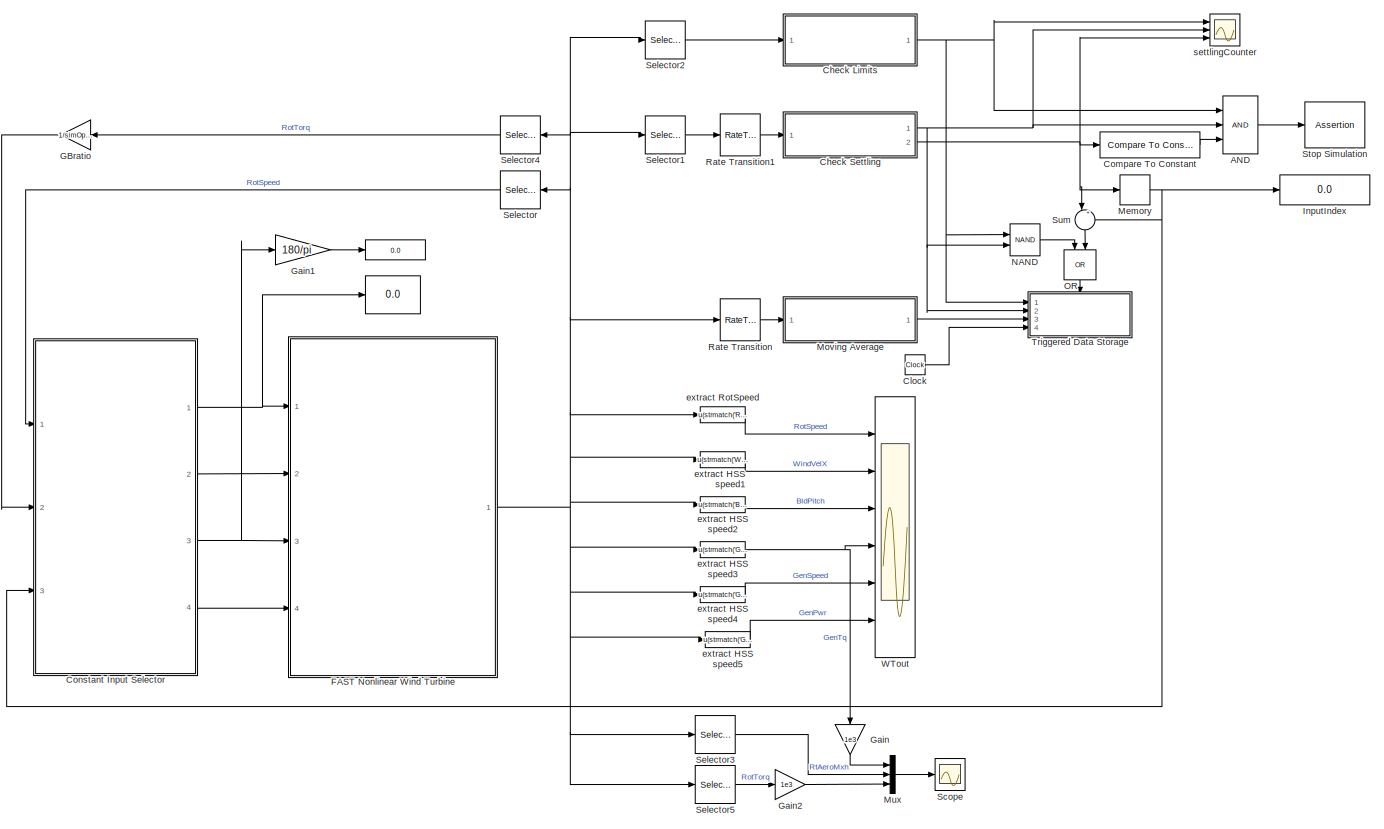
[diagram: root canvas - part 1/2, most of the canvas]
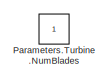
[diagram: root canvas - part 2/2, middle left region]
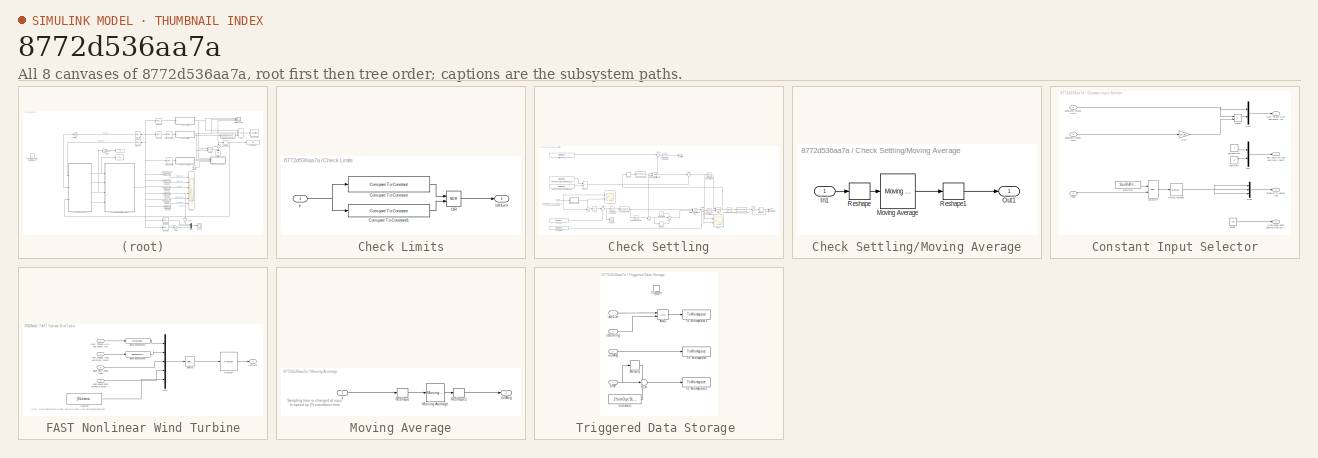
[diagram: thumbnail index - all 8 canvases of the model, root first then tree order]
MODEL slx_8772d536aa7a
KIND model
CONFIG AbsTol = auto
CONFIG EnableMultiTasking = off
CONFIG FixedStep = auto
CONFIG MaxStep = auto
CONFIG MinStep = auto
CONFIG RelTol = 1e-3
CONFIG SampleTimeConstraint = Unconstrained
CONFIG SolverName = ode45
CONFIG StartTime = 0.0
CONFIG StopTime = TMax
BLOCK [Display]  
  Decimation = 1
  Ports = [1]
BLOCK [Display]   
  Decimation = 1
  Ports = [1]
BLOCK [Logic] AND
  AllPortsSameDT = off
  IconShape = distinctive
  Inputs = 3
  OutDataTypeStr = boolean
  Ports = [3, 1]
BLOCK [SubSystem] Check Limits
  Ports = [1, 1]
  RequestExecContextInheritance = off
BLOCK [Reference] Check Limits/Compare To Constant  REF=simulink/Logic and Bit
Operations/Compare
To Constant
  Ports = [1, 1]
  SourceBlock = simulink/Logic and Bit\nOperations/Compare\nTo Constant
  SourceProductBaseCode = SL
  SourceType = Compare To Constant
BLOCK [Reference] Check Limits/Compare To Constant1  REF=simulink/Logic and Bit
Operations/Compare
To Constant
  Ports = [1, 1]
  SourceBlock = simulink/Logic and Bit\nOperations/Compare\nTo Constant
  SourceProductBaseCode = SL
  SourceType = Compare To Constant
BLOCK [Logic] Check Limits/OR
  AllPortsSameDT = off
  IconShape = distinctive
  Operator = NOR
  OutDataTypeStr = boolean
  Ports = [2, 1]
BLOCK [Outport] Check Limits/isInLim
BLOCK [Inport] Check Limits/y
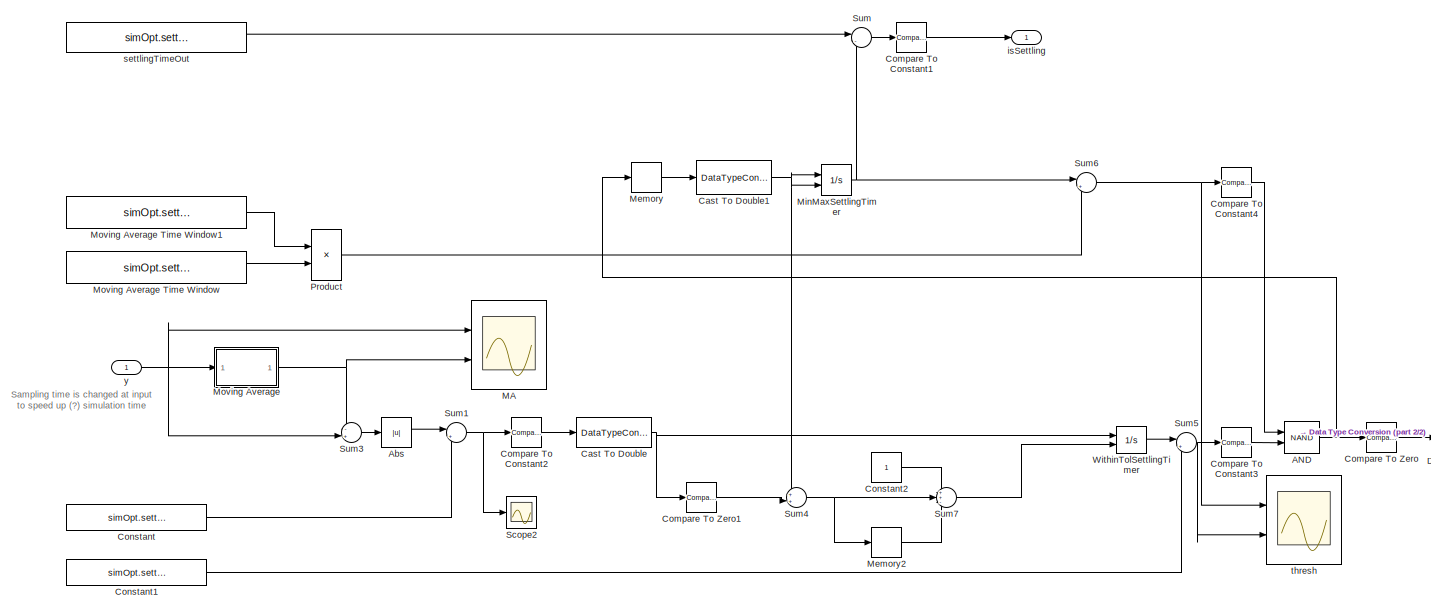
[diagram: Check Settling - part 1/2, most of the canvas]
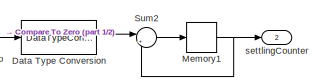
[diagram: Check Settling - part 2/2, bottom right region]
BLOCK [SubSystem] Check Settling
  Ports = [1, 2]
  RequestExecContextInheritance = off
BLOCK [Logic] Check Settling/AND
  AllPortsSameDT = off
  IconShape = distinctive
  Operator = NAND
  OutDataTypeStr = boolean
  Ports = [2, 1]
BLOCK [Abs] Check Settling/Abs
  SaturateOnIntegerOverflow = off
BLOCK [DataTypeConversion] Check Settling/Cast To Double
  OutDataTypeStr = double
  RndMeth = Floor
  SaturateOnIntegerOverflow = off
BLOCK [DataTypeConversion] Check Settling/Cast To Double1
  OutDataTypeStr = double
  RndMeth = Floor
  SaturateOnIntegerOverflow = off
BLOCK [Reference] Check Settling/Compare To Constant1  REF=simulink/Logic and Bit
Operations/Compare
To Constant
  Ports = [1, 1]
  SourceBlock = simulink/Logic and Bit\nOperations/Compare\nTo Constant
  SourceProductBaseCode = SL
  SourceType = Compare To Constant
BLOCK [Reference] Check Settling/Compare To Constant2  REF=simulink/Logic and Bit
Operations/Compare
To Constant
  Ports = [1, 1]
  SourceBlock = simulink/Logic and Bit\nOperations/Compare\nTo Constant
  SourceProductBaseCode = SL
  SourceType = Compare To Constant
BLOCK [Reference] Check Settling/Compare To Constant3  REF=simulink/Logic and Bit
Operations/Compare
To Constant
  Ports = [1, 1]
  SourceBlock = simulink/Logic and Bit\nOperations/Compare\nTo Constant
  SourceProductBaseCode = SL
  SourceType = Compare To Constant
BLOCK [Reference] Check Settling/Compare To Constant4  REF=simulink/Logic and Bit
Operations/Compare
To Constant
  Ports = [1, 1]
  SourceBlock = simulink/Logic and Bit\nOperations/Compare\nTo Constant
  SourceProductBaseCode = SL
  SourceType = Compare To Constant
BLOCK [Reference] Check Settling/Compare To Zero  REF=simulink/Logic and Bit
Operations/Compare
To Zero
  Ports = [1, 1]
  SourceBlock = simulink/Logic and Bit\nOperations/Compare\nTo Zero
  SourceProductBaseCode = SL
  SourceType = Compare To Zero
BLOCK [Reference] Check Settling/Compare To Zero1  REF=simulink/Logic and Bit
Operations/Compare
To Zero
  Ports = [1, 1]
  SourceBlock = simulink/Logic and Bit\nOperations/Compare\nTo Zero
  SourceProductBaseCode = SL
  SourceType = Compare To Zero
BLOCK [Constant] Check Settling/Constant
  Value = simOpt.settlingAbsThresh
BLOCK [Constant] Check Settling/Constant1
  Value = simOpt.settlingMinTime
BLOCK [Constant] Check Settling/Constant2
BLOCK [DataTypeConversion] Check Settling/Data Type Conversion
  RndMeth = Floor
  SaturateOnIntegerOverflow = off
BLOCK [Scope] Check Settling/MA
  Floating = off
  NumInputPorts = 2
  Ports = [2]
  ScopeSpecificationString = Simulink.scopes.TimeScopeBlockCfg('CurrentConfiguration', extmgr.ConfigurationSet(extmgr.Configuration('Core','General UI',true),extmgr.Configuration('Core','Source UI',true),extmgr.Configuration('Sources','WiredSimulink',true,'DataLoggingVariableName','ScopeData2','DataLoggingLimitDataPoints',true,'DataLoggingMaxPoints','50000'),extmgr.Configuration('Visuals','Time Domain',true,'SerializedDisplay...<+1627ch>
BLOCK [Memory] Check Settling/Memory
  InitialCondition = true
BLOCK [Memory] Check Settling/Memory1
  InheritSampleTime = on
  InitialCondition = 1
BLOCK [Memory] Check Settling/Memory2
  InheritSampleTime = on
  InitialCondition = 1
BLOCK [Integrator] Check Settling/MinMaxSettlingTimer
  ExternalReset = falling
  LimitOutput = on
  Ports = [2, 1]
  UpperSaturationLimit = max(simOpt.settlingMovAvgWindowLength*simOpt.settlingSmplTime,simOpt.settlingMaxTime)*1.01
BLOCK [SubSystem] Check Settling/Moving Average
  Ports = [1, 1]
  RequestExecContextInheritance = off
BLOCK [Constant] Check Settling/Moving Average Time Window
  Value = simOpt.settlingMovAvgWindowLength
BLOCK [Constant] Check Settling/Moving Average Time Window1
  Value = simOpt.settlingSmplTime
BLOCK [Inport] Check Settling/Moving Average/In1
BLOCK [Reference] Check Settling/Moving Average/Moving Average  REF=dspstat3/Moving
Average
  Ports = [1, 1]
  SourceBlock = dspstat3/Moving\nAverage
  SourceProductBaseCode = DS
  SourceType = dsp.simulink.MovingAverage
BLOCK [Outport] Check Settling/Moving Average/Out1
BLOCK [Reshape] Check Settling/Moving Average/Reshape
  OutputDimensionality = Row vector (2-D)
  Ports = [1, 1]
BLOCK [Reshape] Check Settling/Moving Average/Reshape1
  Ports = [1, 1]
BLOCK [Product] Check Settling/Product
  Ports = [2, 1]
BLOCK [Scope] Check Settling/Scope2
  Floating = off
  NumInputPorts = 1
  Ports = [1]
  ScopeSpecificationString = Simulink.scopes.TimeScopeBlockCfg('CurrentConfiguration', extmgr.ConfigurationSet(extmgr.Configuration('Core','General UI',true),extmgr.Configuration('Core','Source UI',true),extmgr.Configuration('Sources','WiredSimulink',true,'DataLoggingVariableName','ScopeData1','DataLoggingLimitDataPoints',true),extmgr.Configuration('Visuals','Time Domain',true,'SerializedDisplays',{struct('MinYLimReal','-0.00...<+1469ch>
BLOCK [Sum] Check Settling/Sum
  Inputs = |-+
  Ports = [2, 1]
BLOCK [Sum] Check Settling/Sum1
  Inputs = |+-
  Ports = [2, 1]
BLOCK [Sum] Check Settling/Sum2
  Inputs = |++
  Ports = [2, 1]
BLOCK [Sum] Check Settling/Sum3
  Inputs = -+|
  Ports = [2, 1]
BLOCK [Sum] Check Settling/Sum4
  Inputs = ++|
  Ports = [2, 1]
BLOCK [Sum] Check Settling/Sum5
  Inputs = |+-
  Ports = [2, 1]
BLOCK [Sum] Check Settling/Sum6
  Inputs = |+-
  Ports = [2, 1]
BLOCK [Sum] Check Settling/Sum7
  Inputs = ++-
  Ports = [3, 1]
BLOCK [Integrator] Check Settling/WithinTolSettlingTimer
  ExternalReset = falling
  LimitOutput = on
  Ports = [2, 1]
  UpperSaturationLimit = simOpt.settlingMinTime
BLOCK [Outport] Check Settling/isSettling
BLOCK [Outport] Check Settling/settlingCounter
  Port = 2
BLOCK [Constant] Check Settling/settlingTimeOut
  Value = simOpt.settlingMaxTime
BLOCK [Scope] Check Settling/thresh
  Floating = off
  NumInputPorts = 2
  Ports = [2]
  ScopeSpecificationString = Simulink.scopes.TimeScopeBlockCfg('CurrentConfiguration', extmgr.ConfigurationSet(extmgr.Configuration('Core','General UI',true),extmgr.Configuration('Core','Source UI',true),extmgr.Configuration('Sources','WiredSimulink',true,'DataLoggingVariableName','ScopeData1','DataLoggingLimitDataPoints',true,'DataLoggingMaxPoints','50000'),extmgr.Configuration('Visuals','Time Domain',true,'SerializedDisplay...<+2159ch>
BLOCK [Inport] Check Settling/y
  SampleTime = simOpt.settlingSmplTime
BLOCK [Clock] Clock
BLOCK [Reference] Compare To Constant  REF=simulink/Logic and Bit
Operations/Compare
To Constant
  Ports = [1, 1]
  SourceBlock = simulink/Logic and Bit\nOperations/Compare\nTo Constant
  SourceProductBaseCode = SL
  SourceType = Compare To Constant
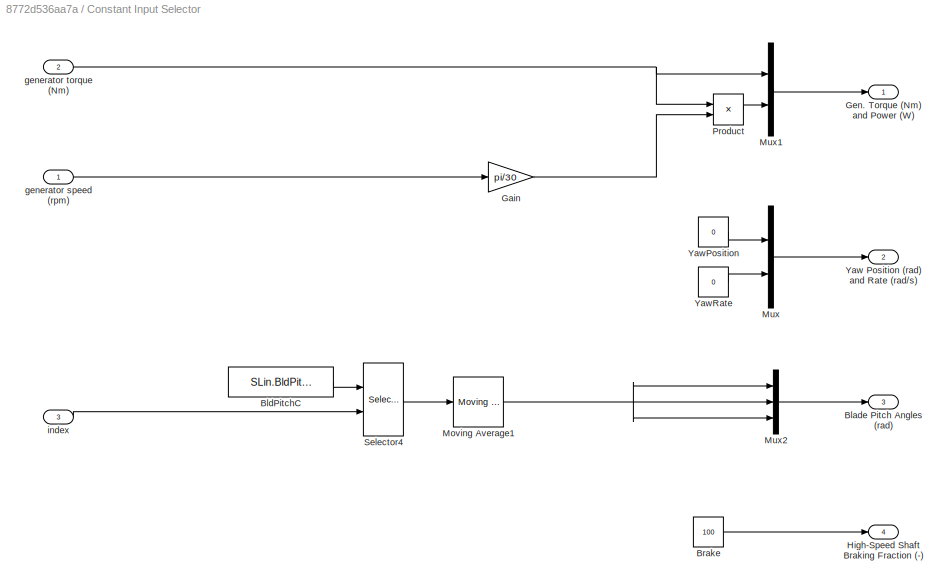
BLOCK [SubSystem] Constant Input Selector
  Ports = [3, 4]
  RequestExecContextInheritance = off
BLOCK [Outport] Constant Input Selector/Blade Pitch Angles (rad)
  Port = 3
BLOCK [Constant] Constant Input Selector/BldPitchC
  Value = SLin.BldPitchC(:)
BLOCK [Constant] Constant Input Selector/Brake
  Value = 100
BLOCK [Gain] Constant Input Selector/Gain
  Gain = pi/30
BLOCK [Outport] Constant Input Selector/Gen. Torque (Nm) and Power (W)
BLOCK [Outport] Constant Input Selector/High-Speed Shaft Braking Fraction (-)
  Port = 4
BLOCK [Reference] Constant Input Selector/Moving Average1  REF=dspstat3/Moving
Average
  Ports = [1, 1]
  SourceBlock = dspstat3/Moving\nAverage
  SourceProductBaseCode = DS
  SourceType = dsp.simulink.MovingAverage
BLOCK [Mux] Constant Input Selector/Mux
  DisplayOption = bar
  Inputs = 2
  Ports = [2, 1]
BLOCK [Mux] Constant Input Selector/Mux1
  DisplayOption = bar
  Inputs = 2
  Ports = [2, 1]
BLOCK [Mux] Constant Input Selector/Mux2
  DisplayOption = bar
  Inputs = 3
  Ports = [3, 1]
BLOCK [Product] Constant Input Selector/Product
  Ports = [2, 1]
BLOCK [Selector] Constant Input Selector/Selector4
  IndexOptions = Index vector (port)
  Indices = simOpt.i_outRotSpeed
  InputPortWidth = SLin.n_step
  OutputSizes = 1
  Ports = [2, 1]
BLOCK [Outport] Constant Input Selector/Yaw Position (rad) and Rate (rad//s)
  Port = 2
BLOCK [Constant] Constant Input Selector/YawPosition
  Value = 0
BLOCK [Constant] Constant Input Selector/YawRate
  Value = 0
BLOCK [Inport] Constant Input Selector/generator speed (rpm)
BLOCK [Inport] Constant Input Selector/generator torque (Nm)
  Port = 2
BLOCK [Inport] Constant Input Selector/index
  Port = 3
BLOCK [SubSystem] FAST Nonlinear Wind Turbine
  Ports = [4, 1]
  RequestExecContextInheritance = off
BLOCK [Inport] FAST Nonlinear Wind Turbine/Blade Pitch Angles (rad)
  Port = 3
BLOCK [Constant] FAST Nonlinear Wind Turbine/Constant
  Value = [SLin.extra;0]
BLOCK [Inport] FAST Nonlinear Wind Turbine/Gen. Torque (Nm) and Power (W)
BLOCK [Inport] FAST Nonlinear Wind Turbine/High-Speed Shaft Braking Fraction (-)
  Port = 4
BLOCK [Mux] FAST Nonlinear Wind Turbine/Mux1
  DisplayOption = bar
  Inputs = 5
  Ports = [5, 1]
BLOCK [Outport] FAST Nonlinear Wind Turbine/OutData
  VectorParamsAs1DForOutWhenUnconnected = off
BLOCK [S-Function] FAST Nonlinear Wind Turbine/S-Function
  EnableBusSupport = off
  FunctionName = FAST_SFunc
  Parameters = simOpt.FSTnewInputFile, simOpt.SLmaxTime, 0
  Ports = [1, 1]
  SFcnIsStateOwnerBlock = off
  SFunctionDeploymentMode = off
BLOCK [Selector] FAST Nonlinear Wind Turbine/Selector
  IndexOptions = Index vector (dialog)
  Indices = 1:(8+numel(SLin.extra))
  InputPortWidth = 9+numel(SLin.extra)
  OutputSizes = 1
  Ports = [1, 1]
BLOCK [SignalSpecification] FAST Nonlinear Wind Turbine/Signal Specification1
  Dimensions = 2
  OutDataTypeStr = double
  SignalType = real
BLOCK [SignalSpecification] FAST Nonlinear Wind Turbine/Signal Specification2
  Dimensions = 2
  OutDataTypeStr = double
  SignalType = real
BLOCK [Inport] FAST Nonlinear Wind Turbine/Yaw Position (rad) and Rate (rad//s)
  Port = 2
BLOCK [Gain] GBratio
  Gain = 1/simOpt.FSTdata.EDFile.GBRatio
  NameLocation = top
BLOCK [Gain] Gain
  Gain = 1e3
  NameLocation = left
BLOCK [Gain] Gain1
  Gain = 180/pi
BLOCK [Gain] Gain2
  Gain = 1e3
BLOCK [Display] InputIndex
  Decimation = 1
  Ports = [1]
BLOCK [Memory] Memory
  InitialCondition = 1
BLOCK [SubSystem] Moving Average
  Ports = [1, 1]
  RequestExecContextInheritance = off
BLOCK [Reference] Moving Average/Moving Average  REF=dspstat3/Moving
Average
  Ports = [1, 1]
  SourceBlock = dspstat3/Moving\nAverage
  SourceProductBaseCode = DS
  SourceType = dsp.simulink.MovingAverage
BLOCK [Reshape] Moving Average/Reshape
  OutputDimensionality = Row vector (2-D)
  Ports = [1, 1]
BLOCK [Reshape] Moving Average/Reshape1
  Ports = [1, 1]
BLOCK [Outport] Moving Average/outAvg
BLOCK [Inport] Moving Average/y
  SampleTime = simOpt.settlingSmplTime
BLOCK [Mux] Mux
  DisplayOption = bar
  Inputs = 3
  Ports = [3, 1]
BLOCK [Logic] NAND
  AllPortsSameDT = off
  IconShape = distinctive
  Operator = NAND
  OutDataTypeStr = boolean
  Ports = [2, 1]
BLOCK [Logic] OR
  AllPortsSameDT = off
  IconShape = distinctive
  NameLocation = left
  Operator = OR
  OutDataTypeStr = boolean
  Ports = [2, 1]
BLOCK [Constant] Parameters.Turbine.NumBlades
  IOType = siggen
BLOCK [RateTransition] Rate Transition
BLOCK [RateTransition] Rate Transition1
BLOCK [Scope] Scope
  Floating = off
  NumInputPorts = 1
  Ports = [1]
  ScopeSpecificationString = Simulink.scopes.TimeScopeBlockCfg('CurrentConfiguration', extmgr.ConfigurationSet(extmgr.Configuration('Core','General UI',true),extmgr.Configuration('Core','Source UI',true),extmgr.Configuration('Sources','WiredSimulink',true,'DataLoggingVariableName','ScopeData1','DataLoggingLimitDataPoints',true,'DataLoggingMaxPoints','50000'),extmgr.Configuration('Visuals','Time Domain',true,'SerializedDisplay...<+1644ch>
BLOCK [Selector] Selector
  IndexOptions = Index vector (dialog)
  Indices = simOpt.idx.y.GenSpeed
  InputPortWidth = simOpt.n_out
  NameLocation = top
  OutputSizes = 1
  Ports = [1, 1]
BLOCK [Selector] Selector1
  IndexOptions = Index vector (dialog)
  Indices = simOpt.idx.y.settling
  InputPortWidth = simOpt.n_out
  OutputSizes = 1
  Ports = [1, 1]
BLOCK [Selector] Selector2
  IndexOptions = Index vector (dialog)
  Indices = simOpt.idx.y.limCheck
  InputPortWidth = simOpt.n_out
  OutputSizes = 1
  Ports = [1, 1]
BLOCK [Selector] Selector3
  IndexOptions = Index vector (dialog)
  Indices = simOpt.idx.y.RtAeroMxh
  InputPortWidth = simOpt.n_out
  OutputSizes = 1
  Ports = [1, 1]
BLOCK [Selector] Selector4
  IndexOptions = Index vector (dialog)
  Indices = simOpt.idx.y.RotTorq
  InputPortWidth = simOpt.n_out
  NameLocation = top
  OutputSizes = 1
  Ports = [1, 1]
BLOCK [Selector] Selector5
  IndexOptions = Index vector (dialog)
  Indices = simOpt.idx.y.RotTorq
  InputPortWidth = simOpt.n_out
  OutputSizes = 1
  Ports = [1, 1]
BLOCK [Assertion] Stop Simulation
  AssertionFailFcn = set_param(bdroot,'SimulationCommand','stop')
  StopWhenAssertionFail = off
BLOCK [Sum] Sum
  Inputs = |+-
  NameLocation = left
  Ports = [2, 1]
BLOCK [SubSystem] Triggered Data Storage 
  Ports = [4, 0, 0, 1]
  RequestExecContextInheritance = off
  TreatAsAtomicUnit = on
BLOCK [Logic] Triggered Data Storage /AND
  AllPortsSameDT = off
  IconShape = distinctive
  OutDataTypeStr = boolean
  Ports = [2, 1]
BLOCK [Constant] Triggered Data Storage /Constant
  Value = 2*simOpt.SLsmplTime
BLOCK [Memory] Triggered Data Storage /Memory
  InheritSampleTime = on
BLOCK [Sum] Triggered Data Storage /Sum
  Inputs = -+-
  Ports = [3, 1]
BLOCK [ToWorkspace] Triggered Data Storage /To Workspace
  FixptAsFi = on
  MaxDataPoints = inf
  Ports = [1]
  SampleTime = -1
  VariableName = outAvg
BLOCK [ToWorkspace] Triggered Data Storage /To Workspace1
  FixptAsFi = on
  MaxDataPoints = inf
  Ports = [1]
  SampleTime = -1
  VariableName = isValid
BLOCK [ToWorkspace] Triggered Data Storage /To Workspace3
  FixptAsFi = on
  MaxDataPoints = inf
  Ports = [1]
  SampleTime = -1
  VariableName = settlingTime
BLOCK [TriggerPort] Triggered Data Storage /Trigger
  Ports = []
  StatesWhenEnabling = held
  VariantControl = (inherit)
BLOCK [Inport] Triggered Data Storage /isInLim
BLOCK [Inport] Triggered Data Storage /isSettling
  Port = 2
BLOCK [Inport] Triggered Data Storage /outAvg
  Port = 3
BLOCK [Inport] Triggered Data Storage /time
  Port = 4
BLOCK [Scope] WTout
  Floating = off
  NumInputPorts = 6
  Ports = [6]
  ScopeSpecificationString = Simulink.scopes.TimeScopeBlockCfg('CurrentConfiguration', extmgr.ConfigurationSet(extmgr.Configuration('Core','General UI',true),extmgr.Configuration('Core','Source UI',true),extmgr.Configuration('Sources','WiredSimulink',true,'DataLoggingVariableName','ScopeData1','DataLoggingLimitDataPoints',true,'DataLoggingMaxPoints','50000'),extmgr.Configuration('Visuals','Time Domain',true,'SerializedDisplay...<+3598ch>
BLOCK [Fcn] extract HSS speed1
  Expr = u(strmatch('Wind1VelX',simOpt.FSToutNameArr))
BLOCK [Fcn] extract HSS speed2
  Expr = u(strmatch('BldPitch1',simOpt.FSToutNameArr))
BLOCK [Fcn] extract HSS speed3
  Expr = u(strmatch('GenTq',simOpt.FSToutNameArr))
BLOCK [Fcn] extract HSS speed4
  Expr = u(strmatch('GenSpeed',simOpt.FSToutNameArr))
BLOCK [Fcn] extract HSS speed5
  Expr = u(strmatch('GenPwr',simOpt.FSToutNameArr))
BLOCK [Fcn] extract RotSpeed
  Expr = u(strmatch('RotSpeed',simOpt.FSToutNameArr))
BLOCK [Scope] settlingCounter
  Floating = off
  NumInputPorts = 3
  Ports = [3]
  ScopeSpecificationString = Simulink.scopes.TimeScopeBlockCfg('CurrentConfiguration', extmgr.ConfigurationSet(extmgr.Configuration('Core','General UI',true),extmgr.Configuration('Core','Source UI',true),extmgr.Configuration('Sources','WiredSimulink',true,'DataLoggingVariableName','ScopeData1'),extmgr.Configuration('Visuals','Time Domain',true,'SerializedDisplays',{struct('MinYLimReal','-0.125','MaxYLimReal','1.125','YLabelRe...<+1571ch>
ANNOTATION Check Settling: Sampling time is changed at input to speed up (?) simulation time
ANNOTATION FAST Nonlinear Wind Turbine: Note: Hack implemented to allow SLin.extra being a zero dimensional signal using selector and an additional zero
ANNOTATION Moving Average: Sampling time is changed at input to speed up (?) simulation time
LINE AND:1 -> Stop Simulation:1
LINE Check Limits/Compare To Constant1:1 -> Check Limits/OR:2
LINE Check Limits/Compare To Constant:1 -> Check Limits/OR:1
LINE Check Limits/OR:1 -> Check Limits/isInLim:1
NET Check Limits/y:1 -> Check Limits/Compare To Constant1:1, Check Limits/Compare To Constant:1
NET Check Limits:1 -> AND:1, NAND:1, Triggered Data Storage :1, settlingCounter:1
NET Check Settling/AND:1 -> Check Settling/Compare To Zero:1, Check Settling/Memory:1
LINE Check Settling/Abs:1 -> Check Settling/Sum1:1
NET Check Settling/Cast To Double1:1 -> Check Settling/MinMaxSettlingTimer:1, Check Settling/MinMaxSettlingTimer:2, Check Settling/Sum4:1
NET Check Settling/Cast To Double:1 -> Check Settling/Compare To Zero1:1, Check Settling/WithinTolSettlingTimer:1
LINE Check Settling/Compare To Constant1:1 -> Check Settling/isSettling:1
LINE Check Settling/Compare To Constant2:1 -> Check Settling/Cast To Double:1
LINE Check Settling/Compare To Constant3:1 -> Check Settling/AND:2
LINE Check Settling/Compare To Constant4:1 -> Check Settling/AND:1
LINE Check Settling/Compare To Zero1:1 -> Check Settling/Sum4:2
LINE Check Settling/Compare To Zero:1 -> Check Settling/Data Type Conversion:1
LINE Check Settling/Constant1:1 -> Check Settling/Sum5:2
LINE Check Settling/Constant2:1 -> Check Settling/Sum7:1
LINE Check Settling/Constant:1 -> Check Settling/Sum1:2
LINE Check Settling/Data Type Conversion:1 -> Check Settling/Sum2:1
NET Check Settling/Memory1:1 -> Check Settling/Sum2:2, Check Settling/settlingCounter:1
LINE Check Settling/Memory2:1 -> Check Settling/Sum7:3
LINE Check Settling/Memory:1 -> Check Settling/Cast To Double1:1
NET Check Settling/MinMaxSettlingTimer:1 -> Check Settling/Sum6:1, Check Settling/Sum:2
LINE Check Settling/Moving Average Time Window1:1 -> Check Settling/Product:1
LINE Check Settling/Moving Average Time Window:1 -> Check Settling/Product:2
LINE Check Settling/Moving Average/In1:1 -> Check Settling/Moving Average/Reshape:1
LINE Check Settling/Moving Average/Moving Average:1 -> Check Settling/Moving Average/Reshape1:1
LINE Check Settling/Moving Average/Reshape1:1 -> Check Settling/Moving Average/Out1:1
LINE Check Settling/Moving Average/Reshape:1 -> Check Settling/Moving Average/Moving Average:1
NET Check Settling/Moving Average:1 -> Check Settling/MA:2, Check Settling/Sum3:1
LINE Check Settling/Product:1 -> Check Settling/Sum6:2
NET Check Settling/Sum1:1 -> Check Settling/Compare To Constant2:1, Check Settling/Scope2:1
LINE Check Settling/Sum2:1 -> Check Settling/Memory1:1
LINE Check Settling/Sum3:1 -> Check Settling/Abs:1
NET Check Settling/Sum4:1 -> Check Settling/Memory2:1, Check Settling/Sum7:2
NET Check Settling/Sum5:1 -> Check Settling/Compare To Constant3:1, Check Settling/thresh:2
NET Check Settling/Sum6:1 -> Check Settling/Compare To Constant4:1, Check Settling/thresh:1
LINE Check Settling/Sum7:1 -> Check Settling/WithinTolSettlingTimer:2
LINE Check Settling/Sum:1 -> Check Settling/Compare To Constant1:1
LINE Check Settling/WithinTolSettlingTimer:1 -> Check Settling/Sum5:1
LINE Check Settling/settlingTimeOut:1 -> Check Settling/Sum:1
NET Check Settling/y:1 -> Check Settling/MA:1, Check Settling/Moving Average:1, Check Settling/Sum3:2
NET Check Settling:1 -> AND:2, NAND:2, Triggered Data Storage :2, settlingCounter:2
NET Check Settling:2 -> Compare To Constant:1, Memory:1, Sum:1, settlingCounter:3
LINE Clock:1 -> Triggered Data Storage :4
LINE Compare To Constant:1 -> AND:3
LINE Constant Input Selector/BldPitchC:1 -> Constant Input Selector/Selector4:1
LINE Constant Input Selector/Brake:1 -> Constant Input Selector/High-Speed Shaft Braking Fraction (-):1
LINE Constant Input Selector/Gain:1 -> Constant Input Selector/Product:2
NET Constant Input Selector/Moving Average1:1 -> Constant Input Selector/Mux2:1, Constant Input Selector/Mux2:2, Constant Input Selector/Mux2:3
LINE Constant Input Selector/Mux1:1 -> Constant Input Selector/Gen. Torque (Nm) and Power (W):1
LINE Constant Input Selector/Mux2:1 -> Constant Input Selector/Blade Pitch Angles (rad):1
LINE Constant Input Selector/Mux:1 -> Constant Input Selector/Yaw Position (rad) and Rate (rad//s):1
LINE Constant Input Selector/Product:1 -> Constant Input Selector/Mux1:2
LINE Constant Input Selector/Selector4:1 -> Constant Input Selector/Moving Average1:1
LINE Constant Input Selector/YawPosition:1 -> Constant Input Selector/Mux:1
LINE Constant Input Selector/YawRate:1 -> Constant Input Selector/Mux:2
LINE Constant Input Selector/generator speed (rpm):1 -> Constant Input Selector/Gain:1
NET Constant Input Selector/generator torque (Nm):1 -> Constant Input Selector/Mux1:1, Constant Input Selector/Product:1
LINE Constant Input Selector/index:1 -> Constant Input Selector/Selector4:2
NET Constant Input Selector:1 ->   :1, FAST Nonlinear Wind Turbine:1
LINE Constant Input Selector:2 -> FAST Nonlinear Wind Turbine:2
NET Constant Input Selector:3 -> FAST Nonlinear Wind Turbine:3, Gain1:1
LINE Constant Input Selector:4 -> FAST Nonlinear Wind Turbine:4
LINE FAST Nonlinear Wind Turbine/Blade Pitch Angles (rad):1 -> FAST Nonlinear Wind Turbine/Mux1:3
LINE FAST Nonlinear Wind Turbine/Constant:1 -> FAST Nonlinear Wind Turbine/Mux1:5
LINE FAST Nonlinear Wind Turbine/Gen. Torque (Nm) and Power (W):1 -> FAST Nonlinear Wind Turbine/Signal Specification1:1
LINE FAST Nonlinear Wind Turbine/High-Speed Shaft Braking Fraction (-):1 -> FAST Nonlinear Wind Turbine/Mux1:4
LINE FAST Nonlinear Wind Turbine/Mux1:1 -> FAST Nonlinear Wind Turbine/Selector:1
LINE FAST Nonlinear Wind Turbine/S-Function:1 -> FAST Nonlinear Wind Turbine/OutData:1
LINE FAST Nonlinear Wind Turbine/Selector:1 -> FAST Nonlinear Wind Turbine/S-Function:1
LINE FAST Nonlinear Wind Turbine/Signal Specification1:1 -> FAST Nonlinear Wind Turbine/Mux1:1
LINE FAST Nonlinear Wind Turbine/Signal Specification2:1 -> FAST Nonlinear Wind Turbine/Mux1:2
LINE FAST Nonlinear Wind Turbine/Yaw Position (rad) and Rate (rad//s):1 -> FAST Nonlinear Wind Turbine/Signal Specification2:1
NET FAST Nonlinear Wind Turbine:1 -> Rate Transition:1, Selector1:1, Selector2:1, Selector3:1, Selector4:1, Selector5:1, Selector:1, extract HSS speed1:1, extract HSS speed2:1, extract HSS speed3:1, extract HSS speed4:1, extract HSS speed5:1, extract RotSpeed:1
LINE GBratio:1 -> Constant Input Selector:2
LINE Gain1:1 ->  :1
LINE Gain2:1 -> Mux:3
LINE Gain:1 -> Mux:1
NET Memory:1 -> Constant Input Selector:3, InputIndex:1, Sum:2
LINE Moving Average/Moving Average:1 -> Moving Average/Reshape1:1
LINE Moving Average/Reshape1:1 -> Moving Average/outAvg:1
LINE Moving Average/Reshape:1 -> Moving Average/Moving Average:1
LINE Moving Average/y:1 -> Moving Average/Reshape:1
LINE Moving Average:1 -> Triggered Data Storage :3
LINE Mux:1 -> Scope:1
LINE NAND:1 -> OR:1
LINE OR:1 -> Triggered Data Storage :trigger
LINE Rate Transition1:1 -> Check Settling:1
LINE Rate Transition:1 -> Moving Average:1
LINE Selector1:1 -> Rate Transition1:1
LINE Selector2:1 -> Check Limits:1
LINE Selector3:1 -> Mux:2
LINE Selector4:1 -> GBratio:1
LINE Selector5:1 -> Gain2:1
LINE Selector:1 -> Constant Input Selector:1
LINE Sum:1 -> OR:2
LINE Triggered Data Storage /AND:1 -> Triggered Data Storage /To Workspace1:1
LINE Triggered Data Storage /Constant:1 -> Triggered Data Storage /Sum:3
LINE Triggered Data Storage /Memory:1 -> Triggered Data Storage /Sum:1
LINE Triggered Data Storage /Sum:1 -> Triggered Data Storage /To Workspace3:1
LINE Triggered Data Storage /isInLim:1 -> Triggered Data Storage /AND:1
LINE Triggered Data Storage /isSettling:1 -> Triggered Data Storage /AND:2
LINE Triggered Data Storage /outAvg:1 -> Triggered Data Storage /To Workspace:1
NET Triggered Data Storage /time:1 -> Triggered Data Storage /Memory:1, Triggered Data Storage /Sum:2
LINE extract HSS speed1:1 -> WTout:2
LINE extract HSS speed2:1 -> WTout:3
NET extract HSS speed3:1 -> Gain:1, WTout:4
LINE extract HSS speed4:1 -> WTout:5
LINE extract HSS speed5:1 -> WTout:6
LINE extract RotSpeed:1 -> WTout:1
note: NET lines group one-source signal fan-out (src -> all destinations, sorted); 1:1 wires keep LINE
